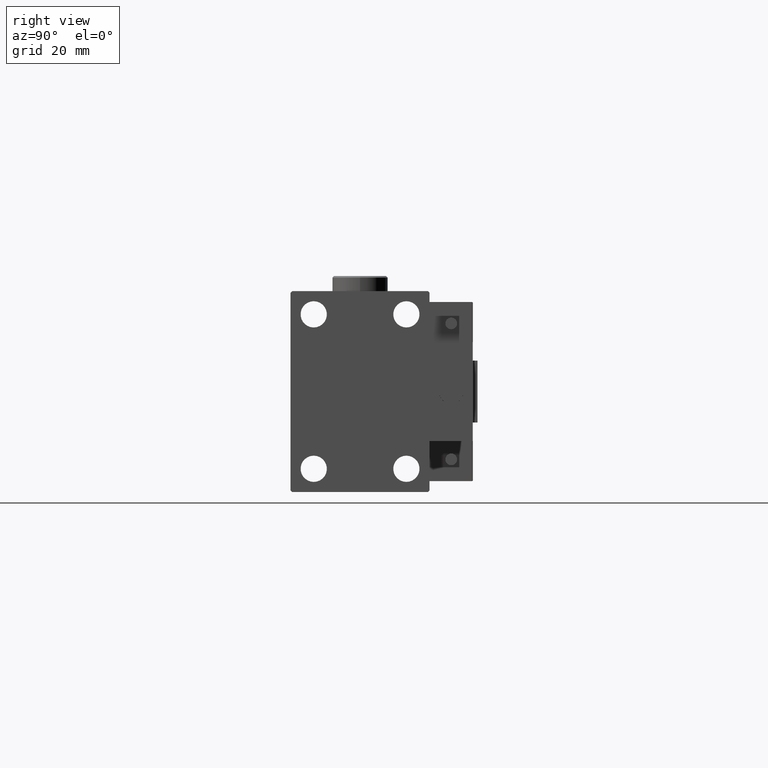
[diagram: clean part render]
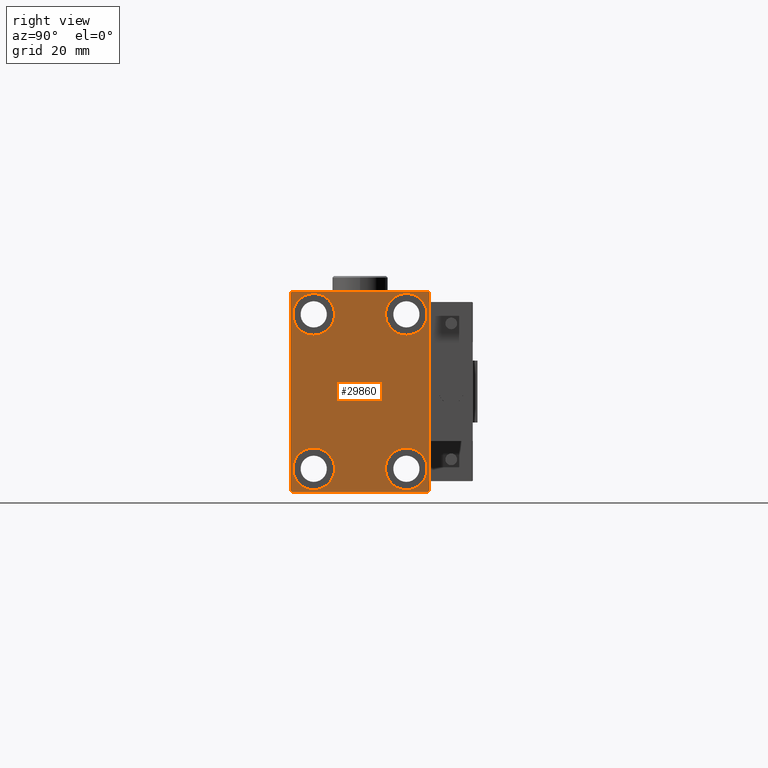
[diagram: same view with one face highlighted and labeled with its STEP entity id]
A machine part, right view. The second image highlights one B-rep face of the part: STEP entity #29860.
In plain terms, the highlighted planar face has unit normal (1, 0, 0).
Its self-contained STEP definition (entity closure, byte-faithful):
#169 = ORIENTED_EDGE ( 'NONE', *, *, #43424, .T. ) ;
#455 = EDGE_CURVE ( 'NONE', #34992, #52554, #28891, .T. ) ;
#914 = CARTESIAN_POINT ( 'NONE',  ( 100.0000000000000000, -14.99999999999999645, 25.00000000000000000 ) ) ;
#2364 = CARTESIAN_POINT ( 'NONE',  ( 100.0000000000000000, 0.000000000000000000, 0.000000000000000000 ) ) ;
#2835 = CARTESIAN_POINT ( 'NONE',  ( 100.0000000000000000, 22.50000000000000000, -32.50000000000000711 ) ) ;
#3412 = CARTESIAN_POINT ( 'NONE',  ( 100.0000000000000000, -15.00000000000000355, -25.00000000000000000 ) ) ;
#3573 = CARTESIAN_POINT ( 'NONE',  ( 100.0000000000000000, -27.25000000000000000, 27.25000000000000000 ) ) ;
#3696 = VERTEX_POINT ( 'NONE', #34195 ) ;
#4307 = EDGE_CURVE ( 'NONE', #7550, #18810, #52458, .T. ) ;
#4551 = CARTESIAN_POINT ( 'NONE',  ( 100.0000000000000000, 21.99999999999999289, 32.50000000000000000 ) ) ;
#5665 = DIRECTION ( 'NONE',  ( 0.000000000000000000, 1.000000000000000000, 0.000000000000000000 ) ) ;
#5842 = DIRECTION ( 'NONE',  ( 0.000000000000000000, 0.000000000000000000, 1.000000000000000000 ) ) ;
#6243 = DIRECTION ( 'NONE',  ( -1.000000000000000000, -0.000000000000000000, -0.000000000000000000 ) ) ;
#6460 = ORIENTED_EDGE ( 'NONE', *, *, #48960, .T. ) ;
#6943 = VERTEX_POINT ( 'NONE', #12049 ) ;
#7404 = ORIENTED_EDGE ( 'NONE', *, *, #20376, .T. ) ;
#7550 = VERTEX_POINT ( 'NONE', #34896 ) ;
#8019 = VERTEX_POINT ( 'NONE', #38369 ) ;
#8221 = VECTOR ( 'NONE', #8441, 1000.000000000000114 ) ;
#8371 = VERTEX_POINT ( 'NONE', #38307 ) ;
#8416 = CARTESIAN_POINT ( 'NONE',  ( 100.0000000000000000, 15.00000000000000355, 18.25000000000000355 ) ) ;
#8441 = DIRECTION ( 'NONE',  ( -0.000000000000000000, 0.7071067811865474617, 0.7071067811865474617 ) ) ;
#10054 = DIRECTION ( 'NONE',  ( 0.000000000000000000, 0.000000000000000000, -1.000000000000000000 ) ) ;
#10227 = AXIS2_PLACEMENT_3D ( 'NONE', #3412, #15231, #16053 ) ;
#10325 = PLANE ( 'NONE',  #20253 ) ;
#10367 = VERTEX_POINT ( 'NONE', #38835 ) ;
#10609 = FACE_BOUND ( 'NONE', #26124, .T. ) ;
#10804 = LINE ( 'NONE', #2835, #37214 ) ;
#11192 = ORIENTED_EDGE ( 'NONE', *, *, #49080, .T. ) ;
#12049 = CARTESIAN_POINT ( 'NONE',  ( 100.0000000000000000, 14.99999999999999645, -31.75000000000000000 ) ) ;
#12887 = AXIS2_PLACEMENT_3D ( 'NONE', #914, #14075, #5842 ) ;
#13654 = EDGE_CURVE ( 'NONE', #52554, #34992, #27569, .T. ) ;
#13910 = FACE_BOUND ( 'NONE', #47813, .T. ) ;
#13975 = DIRECTION ( 'NONE',  ( -0.000000000000000000, 0.7071067811865378028, -0.7071067811865573427 ) ) ;
#14075 = DIRECTION ( 'NONE',  ( -1.000000000000000000, -0.000000000000000000, -0.000000000000000000 ) ) ;
#14606 = CARTESIAN_POINT ( 'NONE',  ( 100.0000000000000000, 27.25000000000014921, 27.24999999999976907 ) ) ;
#14703 = CARTESIAN_POINT ( 'NONE',  ( 100.0000000000000000, -15.00000000000000355, -18.25000000000000355 ) ) ;
#14704 = LINE ( 'NONE', #43305, #40290 ) ;
#15005 = FACE_BOUND ( 'NONE', #44037, .T. ) ;
#15158 = LINE ( 'NONE', #14606, #51228 ) ;
#15231 = DIRECTION ( 'NONE',  ( -1.000000000000000000, -0.000000000000000000, -0.000000000000000000 ) ) ;
#15593 = VERTEX_POINT ( 'NONE', #22138 ) ;
#16053 = DIRECTION ( 'NONE',  ( 0.000000000000000000, 0.000000000000000000, 1.000000000000000000 ) ) ;
#16098 = AXIS2_PLACEMENT_3D ( 'NONE', #16181, #41731, #50536 ) ;
#16127 = EDGE_CURVE ( 'NONE', #30052, #24836, #45644, .T. ) ;
#16180 = AXIS2_PLACEMENT_3D ( 'NONE', #34239, #30113, #51036 ) ;
#16181 = CARTESIAN_POINT ( 'NONE',  ( 100.0000000000000000, 14.99999999999999645, -25.00000000000000000 ) ) ;
#16954 = ORIENTED_EDGE ( 'NONE', *, *, #13654, .T. ) ;
#17383 = EDGE_CURVE ( 'NONE', #6943, #10367, #49691, .T. ) ;
#18483 = ORIENTED_EDGE ( 'NONE', *, *, #39387, .T. ) ;
#18810 = VERTEX_POINT ( 'NONE', #44192 ) ;
#18930 = DIRECTION ( 'NONE',  ( 0.000000000000000000, 0.000000000000000000, 1.000000000000000000 ) ) ;
#19827 = CARTESIAN_POINT ( 'NONE',  ( 100.0000000000000000, 22.49999999999999289, 32.50000000000000000 ) ) ;
#20253 = AXIS2_PLACEMENT_3D ( 'NONE', #2364, #26556, #10054 ) ;
#20287 = CARTESIAN_POINT ( 'NONE',  ( 100.0000000000000000, 27.25000000000000355, -27.25000000000000355 ) ) ;
#20376 = EDGE_CURVE ( 'NONE', #40436, #38611, #49805, .T. ) ;
#22138 = CARTESIAN_POINT ( 'NONE',  ( 100.0000000000000000, 21.99999999999998579, -32.50000000000000711 ) ) ;
#22506 = LINE ( 'NONE', #35673, #45959 ) ;
#23210 = ORIENTED_EDGE ( 'NONE', *, *, #42198, .T. ) ;
#23455 = DIRECTION ( 'NONE',  ( 0.000000000000000000, -1.067522139062650425E-16, 1.000000000000000000 ) ) ;
#24125 = CARTESIAN_POINT ( 'NONE',  ( 100.0000000000000000, -14.99999999999999645, 18.25000000000000355 ) ) ;
#24631 = AXIS2_PLACEMENT_3D ( 'NONE', #27093, #47725, #47991 ) ;
#24836 = VERTEX_POINT ( 'NONE', #44907 ) ;
#24847 = CARTESIAN_POINT ( 'NONE',  ( 100.0000000000000000, -15.00000000000000355, -25.00000000000000000 ) ) ;
#24862 = EDGE_CURVE ( 'NONE', #45166, #8019, #54262, .T. ) ;
#25173 = CIRCLE ( 'NONE', #10227, 6.749999999999999112 ) ;
#25732 = ORIENTED_EDGE ( 'NONE', *, *, #37242, .T. ) ;
#26096 = AXIS2_PLACEMENT_3D ( 'NONE', #40082, #47795, #18930 ) ;
#26124 = EDGE_LOOP ( 'NONE', ( #11192, #7404 ) ) ;
#26556 = DIRECTION ( 'NONE',  ( 1.000000000000000000, 0.000000000000000000, 0.000000000000000000 ) ) ;
#27093 = CARTESIAN_POINT ( 'NONE',  ( 100.0000000000000000, 15.00000000000000355, 25.00000000000000000 ) ) ;
#27569 = CIRCLE ( 'NONE', #16180, 6.749999999999999112 ) ;
#27735 = DIRECTION ( 'NONE',  ( 0.000000000000000000, 0.000000000000000000, 1.000000000000000000 ) ) ;
#28122 = ORIENTED_EDGE ( 'NONE', *, *, #44542, .T. ) ;
#28566 = CARTESIAN_POINT ( 'NONE',  ( 100.0000000000000000, 14.99999999999999645, -25.00000000000000000 ) ) ;
#28577 = VECTOR ( 'NONE', #36317, 1000.000000000000000 ) ;
#28685 = DIRECTION ( 'NONE',  ( 0.000000000000000000, 0.000000000000000000, 1.000000000000000000 ) ) ;
#28891 = CIRCLE ( 'NONE', #24631, 6.749999999999999112 ) ;
#29860 = ADVANCED_FACE ( 'NONE', ( #15005, #10609, #13910, #51851, #40011 ), #10325, .T. ) ;
#30052 = VERTEX_POINT ( 'NONE', #4551 ) ;
#30113 = DIRECTION ( 'NONE',  ( -1.000000000000000000, -0.000000000000000000, -0.000000000000000000 ) ) ;
#31212 = AXIS2_PLACEMENT_3D ( 'NONE', #28566, #48911, #27735 ) ;
#31268 = CARTESIAN_POINT ( 'NONE',  ( 100.0000000000000000, -22.50000000000000711, 31.99999999999999289 ) ) ;
#31369 = ORIENTED_EDGE ( 'NONE', *, *, #4307, .T. ) ;
#31865 = LINE ( 'NONE', #3573, #43399 ) ;
#33012 = ORIENTED_EDGE ( 'NONE', *, *, #455, .T. ) ;
#33026 = ORIENTED_EDGE ( 'NONE', *, *, #24862, .T. ) ;
#33770 = DIRECTION ( 'NONE',  ( 0.000000000000000000, -0.7071067811865474617, -0.7071067811865474617 ) ) ;
#34195 = CARTESIAN_POINT ( 'NONE',  ( 100.0000000000000000, 22.49999999999999289, 31.99999999999999289 ) ) ;
#34239 = CARTESIAN_POINT ( 'NONE',  ( 100.0000000000000000, 15.00000000000000355, 25.00000000000000000 ) ) ;
#34896 = CARTESIAN_POINT ( 'NONE',  ( 100.0000000000000000, -22.50000000000000711, -32.00000000000000711 ) ) ;
#34992 = VERTEX_POINT ( 'NONE', #41772 ) ;
#35099 = VERTEX_POINT ( 'NONE', #31268 ) ;
#35673 = CARTESIAN_POINT ( 'NONE',  ( 100.0000000000000000, -22.50000000000000711, 32.49999999999999289 ) ) ;
#35947 = DIRECTION ( 'NONE',  ( 0.000000000000000000, 0.000000000000000000, -1.000000000000000000 ) ) ;
#36317 = DIRECTION ( 'NONE',  ( 0.000000000000000000, -1.000000000000000000, -1.541976423090495387E-16 ) ) ;
#36644 = EDGE_LOOP ( 'NONE', ( #6460, #33026 ) ) ;
#37163 = EDGE_LOOP ( 'NONE', ( #49277, #28122, #18483, #31369, #48557, #23210, #169, #47579 ) ) ;
#37214 = VECTOR ( 'NONE', #23455, 1000.000000000000000 ) ;
#37242 = EDGE_CURVE ( 'NONE', #10367, #6943, #44171, .T. ) ;
#37980 = EDGE_CURVE ( 'NONE', #3696, #30052, #15158, .T. ) ;
#37997 = ORIENTED_EDGE ( 'NONE', *, *, #17383, .T. ) ;
#38307 = CARTESIAN_POINT ( 'NONE',  ( 100.0000000000000000, 22.50000000000000000, -32.00000000000000711 ) ) ;
#38369 = CARTESIAN_POINT ( 'NONE',  ( 100.0000000000000000, -15.00000000000000355, -31.75000000000000000 ) ) ;
#38611 = VERTEX_POINT ( 'NONE', #24125 ) ;
#38835 = CARTESIAN_POINT ( 'NONE',  ( 100.0000000000000000, 14.99999999999999645, -18.25000000000000355 ) ) ;
#39387 = EDGE_CURVE ( 'NONE', #35099, #7550, #22506, .T. ) ;
#40011 = FACE_OUTER_BOUND ( 'NONE', #37163, .T. ) ;
#40082 = CARTESIAN_POINT ( 'NONE',  ( 100.0000000000000000, -14.99999999999999645, 25.00000000000000000 ) ) ;
#40290 = VECTOR ( 'NONE', #5665, 1000.000000000000000 ) ;
#40436 = VERTEX_POINT ( 'NONE', #46909 ) ;
#41343 = VECTOR ( 'NONE', #13975, 1000.000000000000000 ) ;
#41731 = DIRECTION ( 'NONE',  ( -1.000000000000000000, -0.000000000000000000, -0.000000000000000000 ) ) ;
#41772 = CARTESIAN_POINT ( 'NONE',  ( 100.0000000000000000, 15.00000000000000355, 31.75000000000000000 ) ) ;
#42198 = EDGE_CURVE ( 'NONE', #15593, #8371, #50235, .T. ) ;
#42839 = AXIS2_PLACEMENT_3D ( 'NONE', #24847, #6243, #28685 ) ;
#43305 = CARTESIAN_POINT ( 'NONE',  ( 100.0000000000000000, -22.50000000000000711, -32.50000000000000711 ) ) ;
#43399 = VECTOR ( 'NONE', #33770, 1000.000000000000114 ) ;
#43424 = EDGE_CURVE ( 'NONE', #8371, #3696, #10804, .T. ) ;
#44037 = EDGE_LOOP ( 'NONE', ( #37997, #25732 ) ) ;
#44171 = CIRCLE ( 'NONE', #16098, 6.749999999999999112 ) ;
#44192 = CARTESIAN_POINT ( 'NONE',  ( 100.0000000000000000, -22.00000000000002132, -32.50000000000000711 ) ) ;
#44194 = CARTESIAN_POINT ( 'NONE',  ( 100.0000000000000000, -27.25000000000032330, -27.24999999999957012 ) ) ;
#44542 = EDGE_CURVE ( 'NONE', #24836, #35099, #31865, .T. ) ;
#44907 = CARTESIAN_POINT ( 'NONE',  ( 100.0000000000000000, -21.99999999999999289, 32.49999999999999289 ) ) ;
#45166 = VERTEX_POINT ( 'NONE', #14703 ) ;
#45644 = LINE ( 'NONE', #19827, #28577 ) ;
#45959 = VECTOR ( 'NONE', #35947, 1000.000000000000000 ) ;
#46909 = CARTESIAN_POINT ( 'NONE',  ( 100.0000000000000000, -14.99999999999999645, 31.75000000000000000 ) ) ;
#47579 = ORIENTED_EDGE ( 'NONE', *, *, #37980, .T. ) ;
#47725 = DIRECTION ( 'NONE',  ( -1.000000000000000000, -0.000000000000000000, -0.000000000000000000 ) ) ;
#47795 = DIRECTION ( 'NONE',  ( -1.000000000000000000, -0.000000000000000000, -0.000000000000000000 ) ) ;
#47813 = EDGE_LOOP ( 'NONE', ( #16954, #33012 ) ) ;
#47991 = DIRECTION ( 'NONE',  ( 0.000000000000000000, 0.000000000000000000, 1.000000000000000000 ) ) ;
#48557 = ORIENTED_EDGE ( 'NONE', *, *, #53636, .T. ) ;
#48911 = DIRECTION ( 'NONE',  ( -1.000000000000000000, -0.000000000000000000, -0.000000000000000000 ) ) ;
#48960 = EDGE_CURVE ( 'NONE', #8019, #45166, #25173, .T. ) ;
#49080 = EDGE_CURVE ( 'NONE', #38611, #40436, #50644, .T. ) ;
#49277 = ORIENTED_EDGE ( 'NONE', *, *, #16127, .T. ) ;
#49691 = CIRCLE ( 'NONE', #31212, 6.749999999999999112 ) ;
#49805 = CIRCLE ( 'NONE', #26096, 6.749999999999999112 ) ;
#50235 = LINE ( 'NONE', #20287, #8221 ) ;
#50536 = DIRECTION ( 'NONE',  ( 0.000000000000000000, 0.000000000000000000, 1.000000000000000000 ) ) ;
#50644 = CIRCLE ( 'NONE', #12887, 6.749999999999999112 ) ;
#51036 = DIRECTION ( 'NONE',  ( 0.000000000000000000, 0.000000000000000000, 1.000000000000000000 ) ) ;
#51228 = VECTOR ( 'NONE', #52001, 999.9999999999998863 ) ;
#51851 = FACE_BOUND ( 'NONE', #36644, .T. ) ;
#52001 = DIRECTION ( 'NONE',  ( -0.000000000000000000, -0.7071067811865425767, 0.7071067811865525687 ) ) ;
#52458 = LINE ( 'NONE', #44194, #41343 ) ;
#52554 = VERTEX_POINT ( 'NONE', #8416 ) ;
#53636 = EDGE_CURVE ( 'NONE', #18810, #15593, #14704, .T. ) ;
#54262 = CIRCLE ( 'NONE', #42839, 6.749999999999999112 ) ;